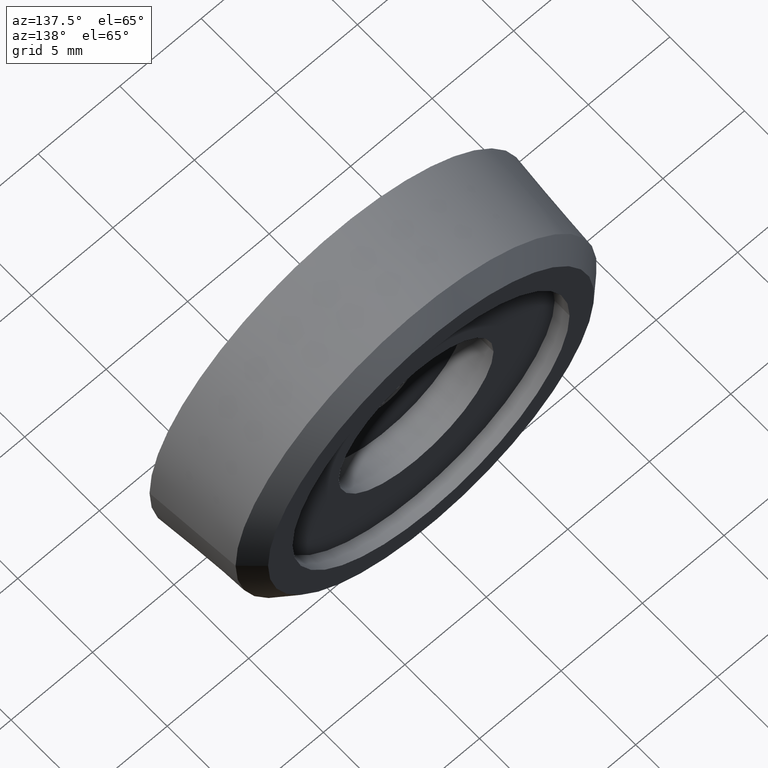
[diagram: clean part render]
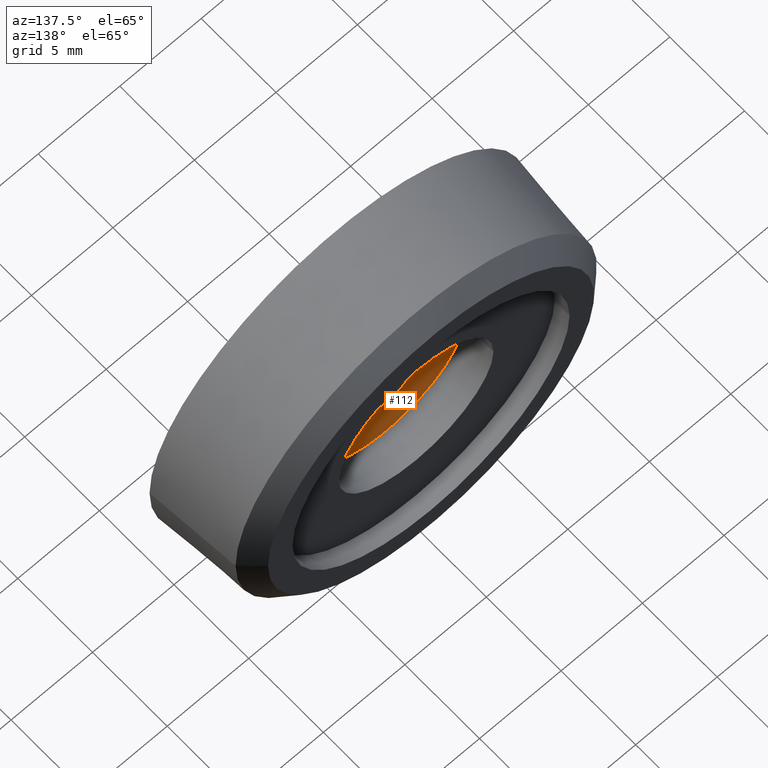
[diagram: same view with one face highlighted and labeled with its STEP entity id]
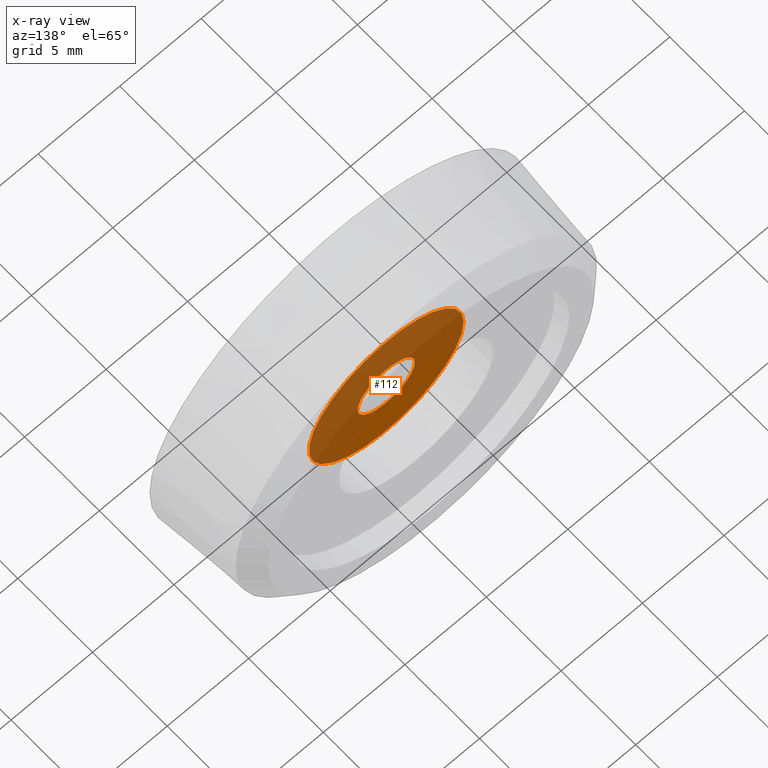
[diagram: x-ray of the same camera — body ghosted, the highlighted face saturated]
A machine part, auxiliary view. The second image highlights one B-rep face of the part: STEP entity #112.
The next image is the same camera in x-ray: the body ghosted, the highlighted face saturated — about 73% of this face is hidden behind the body in this view.
In plain terms, the highlighted planar face has unit normal (0, 1, 0).
Its self-contained STEP definition (entity closure, byte-faithful):
#20=PLANE('',#132);
#29=FACE_BOUND('',#55,.T.);
#38=FACE_OUTER_BOUND('',#54,.T.);
#54=EDGE_LOOP('',(#99));
#55=EDGE_LOOP('',(#100));
#63=CIRCLE('',#125,1.75);
#66=CIRCLE('',#131,4.75);
#72=VERTEX_POINT('',#187);
#75=VERTEX_POINT('',#196);
#81=EDGE_CURVE('',#72,#72,#63,.T.);
#84=EDGE_CURVE('',#75,#75,#66,.T.);
#99=ORIENTED_EDGE('',*,*,#84,.T.);
#100=ORIENTED_EDGE('',*,*,#81,.T.);
#112=ADVANCED_FACE('',(#38,#29),#20,.T.);
#125=AXIS2_PLACEMENT_3D('',#188,#154,#155);
#131=AXIS2_PLACEMENT_3D('',#197,#166,#167);
#132=AXIS2_PLACEMENT_3D('',#198,#168,#169);
#154=DIRECTION('center_axis',(0.,-1.,0.));
#155=DIRECTION('ref_axis',(-1.,0.,0.));
#166=DIRECTION('center_axis',(0.,1.,0.));
#167=DIRECTION('ref_axis',(-1.,0.,0.));
#168=DIRECTION('center_axis',(0.,1.,0.));
#169=DIRECTION('ref_axis',(-1.,0.,0.));
#187=CARTESIAN_POINT('',(-1.75,3.3,0.));
#188=CARTESIAN_POINT('Origin',(0.,3.3,0.));
#196=CARTESIAN_POINT('',(-4.75,3.3,0.));
#197=CARTESIAN_POINT('Origin',(0.,3.3,0.));
#198=CARTESIAN_POINT('Origin',(0.,3.3,0.));